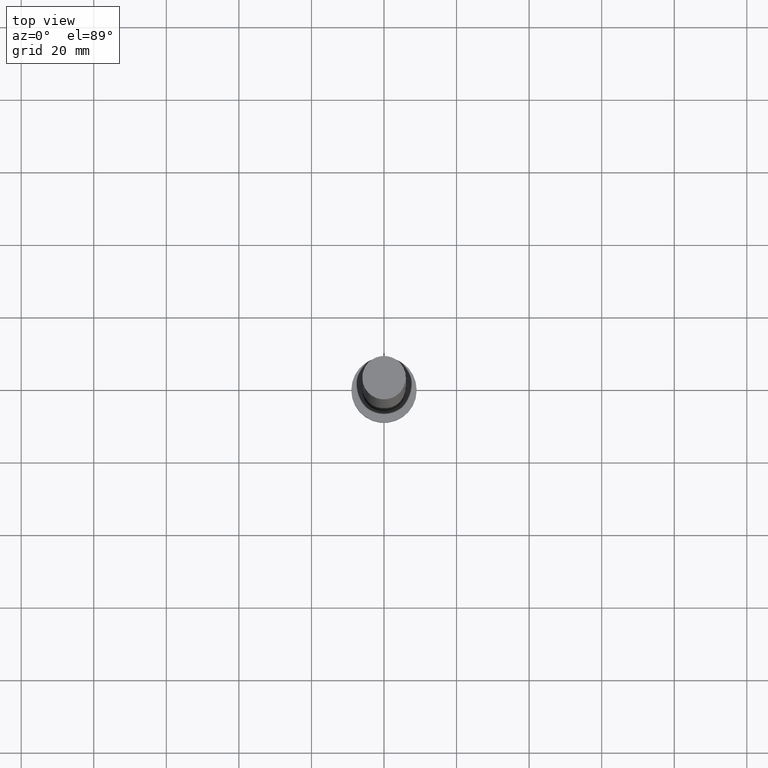
[diagram: clean part render]
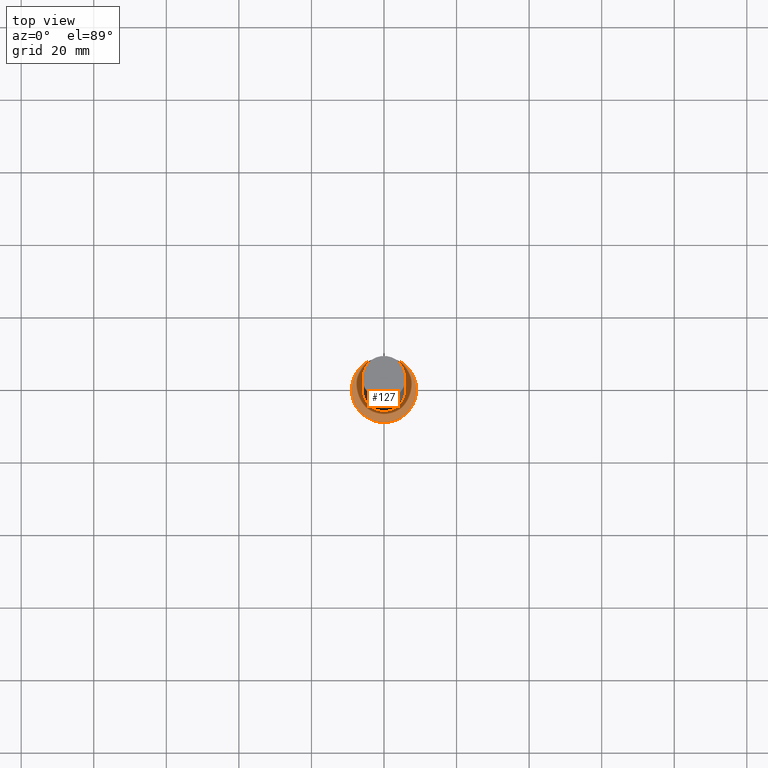
[diagram: same view with one face highlighted and labeled with its STEP entity id]
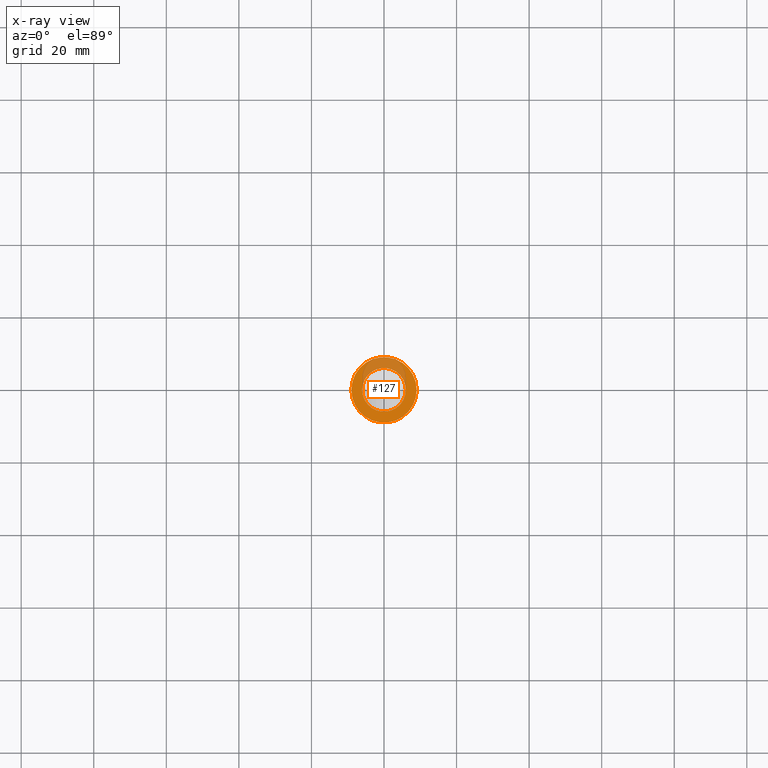
[diagram: x-ray of the same camera — body ghosted, the highlighted face saturated]
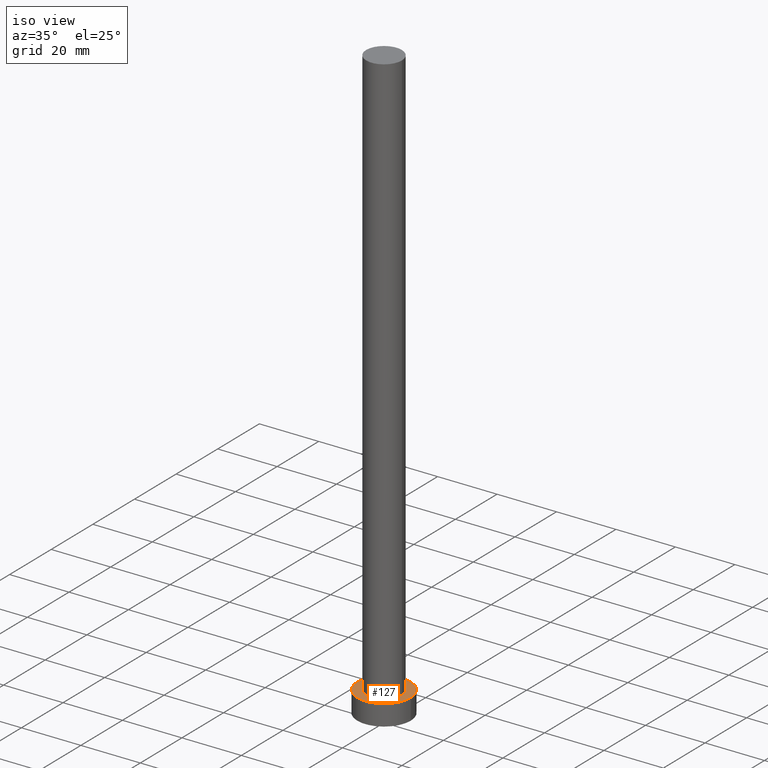
[diagram: same view with one face highlighted and labeled with its STEP entity id]
A machine part, top view. The second image highlights one B-rep face of the part: STEP entity #127.
The next image is the same camera in x-ray: the body ghosted, the highlighted face saturated — about 28% of this face is hidden behind the body in this view.
A second angle (iso view) of the same face is appended — the face is thin or edge-on in the first view.
In plain terms, the highlighted planar face has unit normal (0, 0, 1).
Its self-contained STEP definition (entity closure, byte-faithful):
#2 = EDGE_CURVE ( 'NONE', #11, #214, #76, .T. ) ;
#3 = EDGE_LOOP ( 'NONE', ( #149, #58 ) ) ;
#10 = CARTESIAN_POINT ( 'NONE',  ( -6.000000000000000888, 0.000000000000000000, 7.000000000000000000 ) ) ;
#11 = VERTEX_POINT ( 'NONE', #10 ) ;
#12 = DIRECTION ( 'NONE',  ( 0.000000000000000000, 0.000000000000000000, 1.000000000000000000 ) ) ;
#13 = DIRECTION ( 'NONE',  ( 1.000000000000000000, 0.000000000000000000, -0.000000000000000000 ) ) ;
#14 = EDGE_CURVE ( 'NONE', #214, #11, #44, .T. ) ;
#16 = ORIENTED_EDGE ( 'NONE', *, *, #27, .T. ) ;
#26 = AXIS2_PLACEMENT_3D ( 'NONE', #236, #89, #237 ) ;
#27 = EDGE_CURVE ( 'NONE', #211, #83, #106, .T. ) ;
#32 = DIRECTION ( 'NONE',  ( 0.000000000000000000, 0.000000000000000000, 1.000000000000000000 ) ) ;
#44 = CIRCLE ( 'NONE', #216, 6.000000000000000888 ) ;
#47 = CARTESIAN_POINT ( 'NONE',  ( 0.000000000000000000, 0.000000000000000000, 7.000000000000000000 ) ) ;
#48 = AXIS2_PLACEMENT_3D ( 'NONE', #47, #173, #72 ) ;
#56 = CARTESIAN_POINT ( 'NONE',  ( -9.000000000000000000, 0.000000000000000000, 7.000000000000000000 ) ) ;
#58 = ORIENTED_EDGE ( 'NONE', *, *, #14, .F. ) ;
#68 = CARTESIAN_POINT ( 'NONE',  ( 9.000000000000000000, 1.102182119232617714E-15, 7.000000000000000000 ) ) ;
#72 = DIRECTION ( 'NONE',  ( 1.000000000000000000, 0.000000000000000000, 0.000000000000000000 ) ) ;
#76 = CIRCLE ( 'NONE', #48, 6.000000000000000888 ) ;
#83 = VERTEX_POINT ( 'NONE', #68 ) ;
#89 = DIRECTION ( 'NONE',  ( 0.000000000000000000, 0.000000000000000000, 1.000000000000000000 ) ) ;
#92 = DIRECTION ( 'NONE',  ( 1.000000000000000000, 0.000000000000000000, 0.000000000000000000 ) ) ;
#103 = DIRECTION ( 'NONE',  ( 0.000000000000000000, 0.000000000000000000, 1.000000000000000000 ) ) ;
#106 = CIRCLE ( 'NONE', #26, 9.000000000000000000 ) ;
#116 = EDGE_LOOP ( 'NONE', ( #16, #147 ) ) ;
#127 = ADVANCED_FACE ( 'NONE', ( #132, #142 ), #209, .T. ) ;
#129 = CARTESIAN_POINT ( 'NONE',  ( 0.000000000000000000, 0.000000000000000000, 7.000000000000000000 ) ) ;
#131 = CIRCLE ( 'NONE', #224, 9.000000000000000000 ) ;
#132 = FACE_BOUND ( 'NONE', #3, .T. ) ;
#142 = FACE_OUTER_BOUND ( 'NONE', #116, .T. ) ;
#147 = ORIENTED_EDGE ( 'NONE', *, *, #203, .T. ) ;
#149 = ORIENTED_EDGE ( 'NONE', *, *, #2, .F. ) ;
#150 = AXIS2_PLACEMENT_3D ( 'NONE', #129, #32, #13 ) ;
#173 = DIRECTION ( 'NONE',  ( 0.000000000000000000, 0.000000000000000000, 1.000000000000000000 ) ) ;
#195 = CARTESIAN_POINT ( 'NONE',  ( 0.000000000000000000, 0.000000000000000000, 7.000000000000000000 ) ) ;
#203 = EDGE_CURVE ( 'NONE', #83, #211, #131, .T. ) ;
#209 = PLANE ( 'NONE',  #150 ) ;
#211 = VERTEX_POINT ( 'NONE', #56 ) ;
#214 = VERTEX_POINT ( 'NONE', #228 ) ;
#216 = AXIS2_PLACEMENT_3D ( 'NONE', #195, #103, #218 ) ;
#218 = DIRECTION ( 'NONE',  ( 1.000000000000000000, 0.000000000000000000, 0.000000000000000000 ) ) ;
#224 = AXIS2_PLACEMENT_3D ( 'NONE', #226, #12, #92 ) ;
#226 = CARTESIAN_POINT ( 'NONE',  ( 0.000000000000000000, 0.000000000000000000, 7.000000000000000000 ) ) ;
#228 = CARTESIAN_POINT ( 'NONE',  ( 6.000000000000000888, 7.347880794884120722E-16, 7.000000000000000000 ) ) ;
#236 = CARTESIAN_POINT ( 'NONE',  ( 0.000000000000000000, 0.000000000000000000, 7.000000000000000000 ) ) ;
#237 = DIRECTION ( 'NONE',  ( 1.000000000000000000, 0.000000000000000000, 0.000000000000000000 ) ) ;